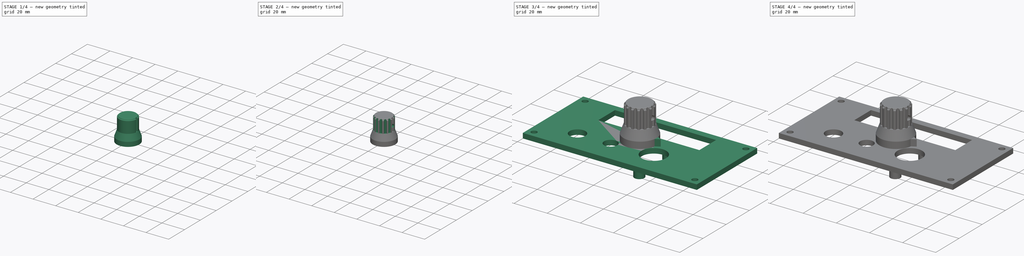
[diagram: build sequence overview — one tinted view per stage of 4, left to right]
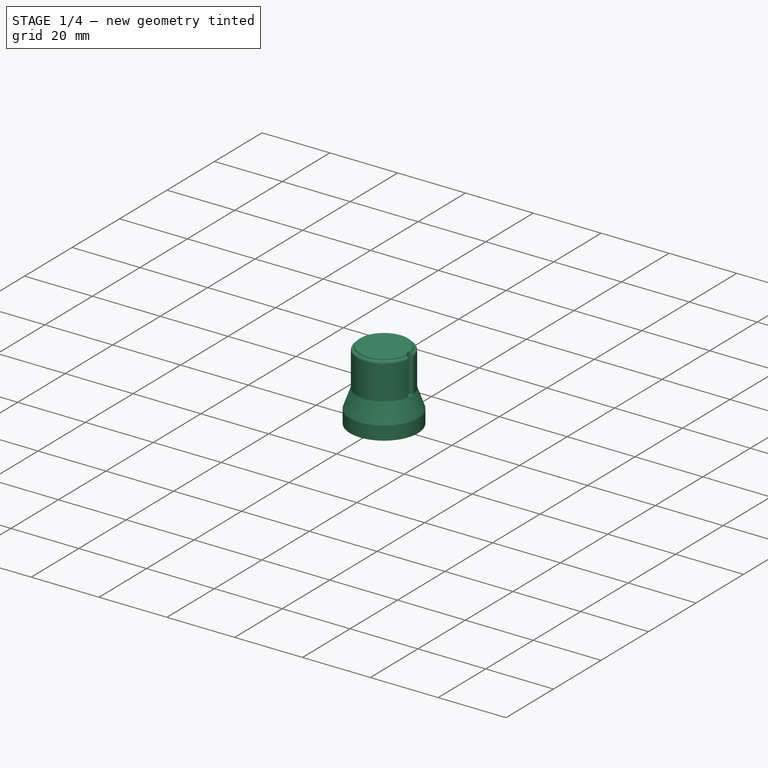
[diagram: stage 1 of 4 — iso view after this stage's code; geometry added in this stage tinted green]
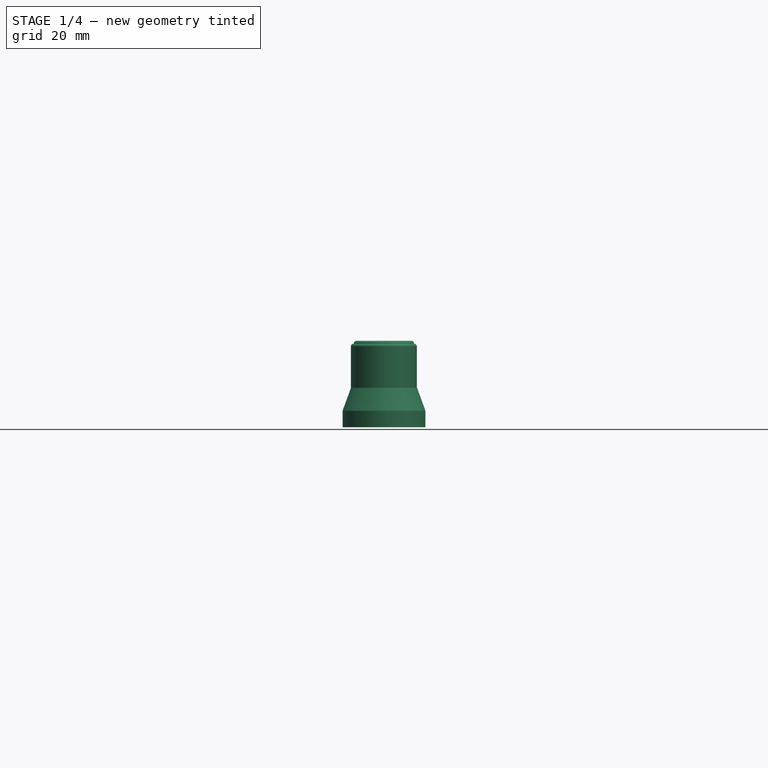
[diagram: stage 1 of 4 — front view after this stage's code; geometry added in this stage tinted green]
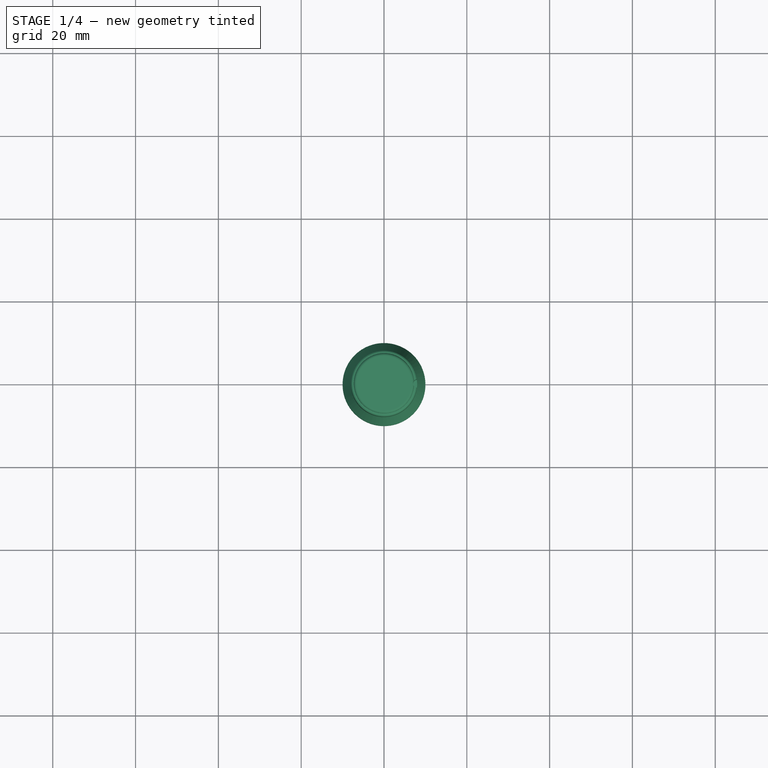
[diagram: stage 1 of 4 — top view after this stage's code; geometry added in this stage tinted green]
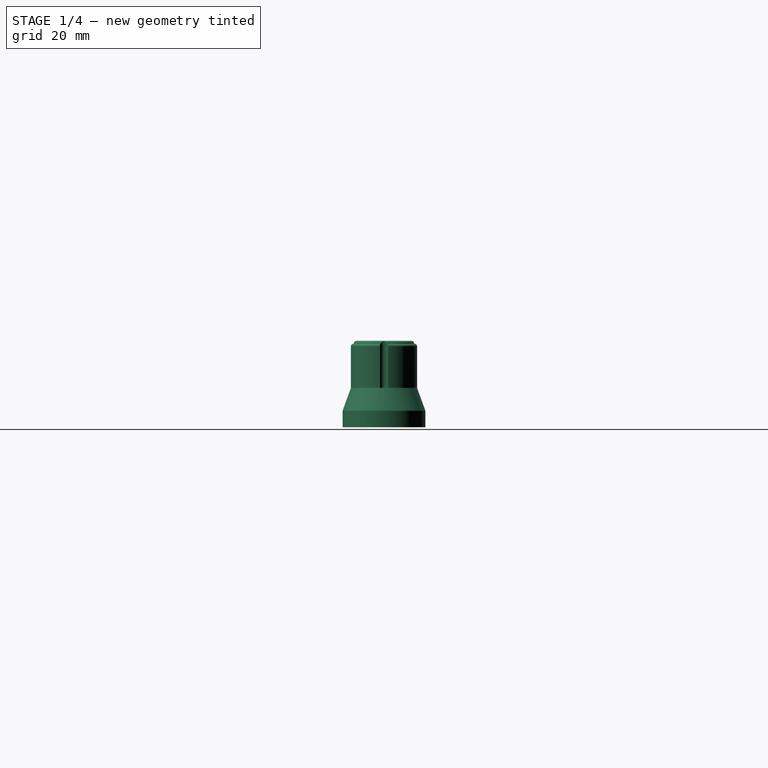
[diagram: stage 1 of 4 — right view after this stage's code; geometry added in this stage tinted green]
FCSTD DOCUMENT  (FreeCAD 0.16R6712 (Git))
Label: transponder
License: All rights reserved
LicenseURL: http://en.wikipedia.org/wiki/All_rights_reserved
objects: Sketcher::SketchObject×8, PartDesign::Pad×4, PartDesign::Pocket×3, PartDesign::Revolution×1, PartDesign::PolarPattern×1, Part::Cut×1, App::DocumentObjectGroup×1
note: 26 computed .brp shape members not serialized (recipe doc carries the construction recipe); baked Part::Feature solids carry a one-line shape summary decoded from their .brp

FEATURE [Sketcher::SketchObject] Sketch091
  Placement = pos=(0,0,0) rot=(1,0,0;1.5708rad)
  sketch-geometry (15):
    g0: LineSegment StartX=8.5 StartY=0 StartZ=0 EndX=10 EndY=0 EndZ=0
    g1: LineSegment StartX=10 StartY=0 StartZ=0 EndX=10 EndY=4 EndZ=0
    g2: LineSegment StartX=10 StartY=4 StartZ=0 EndX=8 EndY=9.5 EndZ=0
    g3: LineSegment StartX=8 StartY=9.5 StartZ=0 EndX=8 EndY=19.5 EndZ=0
    g4: LineSegment [constr] StartX=8 StartY=19.5 StartZ=0 EndX=-6.9e-11 EndY=19.5 EndZ=0
    g5: LineSegment StartX=-6.9e-11 StartY=19.5 StartZ=0 EndX=-6.9e-11 EndY=17 EndZ=0
    g6: LineSegment StartX=-6.9e-11 StartY=17 StartZ=0 EndX=3.1 EndY=17 EndZ=0
    g7: LineSegment StartX=3.1 StartY=17 StartZ=0 EndX=3.1 EndY=6 EndZ=0
    g8: LineSegment StartX=3.1 StartY=6 StartZ=0 EndX=8.5 EndY=6 EndZ=0
    g9: LineSegment StartX=8.5 StartY=6 StartZ=0 EndX=8.5 EndY=0 EndZ=0
    g10: ArcOfCircle CenterX=7.3 CenterY=19.5 CenterZ=0 NormalX=0 NormalY=0 NormalZ=1 Radius=0.7 StartAngle=0 EndAngle=1.57079
    g11: LineSegment [constr] StartX=7.3 StartY=20.2 StartZ=0 EndX=0 EndY=20.2 EndZ=0
    g12: ArcOfCircle CenterX=6.6 CenterY=20.2 CenterZ=0 NormalX=0 NormalY=0 NormalZ=1 Radius=0.7 StartAngle=0 EndAngle=1.57079
    g13: LineSegment StartX=6.6 StartY=20.9 StartZ=0 EndX=0 EndY=20.9 EndZ=0
    g14: LineSegment StartX=-6.9e-11 StartY=20.9 StartZ=0 EndX=-6.9e-11 EndY=19.5 EndZ=0
  constraints (47):
    c: Horizontal(g0)
    c: Coincident(g0,g1)
    c: Vertical(g1)
    c: Coincident(g1,g2)
    c: Coincident(g2,g3)
    c: Vertical(g3)
    c: Coincident(g3,g4)
    c: Horizontal(g4)
    c: Coincident(g4,g5)
    c: Vertical(g5)
    c: Coincident(g5,g6)
    c: Horizontal(g6)
    c: Coincident(g6,g7)
    c: Vertical(g7)
    c: Coincident(g7,g8)
    c: Horizontal(g8)
    c: Coincident(g8,g9)
    c: Coincident(g9,g0)
    c: Vertical(g9)
    c: DistanceX(g4,g4) = 8
    c: DistanceX(g2,g2) = 2
    c: DistanceY(g1,g1) = 4
    c: DistanceY(g9,g9) = 6
    c: DistanceX(g6,g6) = 3.1
    c: PointOnObject(g4,g-2)
    c: DistanceX(g-1,g0) = 8.5
    c: DistanceY(g0,g3) = 19.5
    c: PointOnObject(g0,g-1)
    c: DistanceY(g-1,g5) = 17
    c: DistanceY(g3,g3) = 10
    c: Coincident(g10,g3)
    c: PointOnObject(g10,g4)
    c: Radius(g10) = 0.7
    c: Horizontal(g11)
    c: Coincident(g11,g10)
    c: PointOnObject(g11,g-2)
    c: DistanceY(g3,g10) = 0.7
    c: PointOnObject(g12,g11)
    c: Coincident(g12,g10)
    c: Radius(g12) = 0.7
    c: DistanceY(g10,g12) = 0.7
    c: Horizontal(g13)
    c: Coincident(g13,g12)
    c: PointOnObject(g13,g-2)
    c: Vertical(g14)
    c: Coincident(g14,g4)
    c: Coincident(g14,g13)
FEATURE [PartDesign::Revolution] Revolution
  Angle = 360
  Axis = (0,0,1)
  Base = (0,0,0)
  Placement = pos=(0,0,0) rot=(1,0,0;1.5708rad)
  ReferenceAxis = -> Sketch091 [V_Axis]
  Reversed = true
  Sketch = -> Sketch091
FEATURE [PartDesign::Pocket] Pocket009
  Length = 11.4
  Placement = pos=(0,0,0) rot=(1,0,0;1.5708rad)
  Sketch = -> Sketch092
  Type = 0
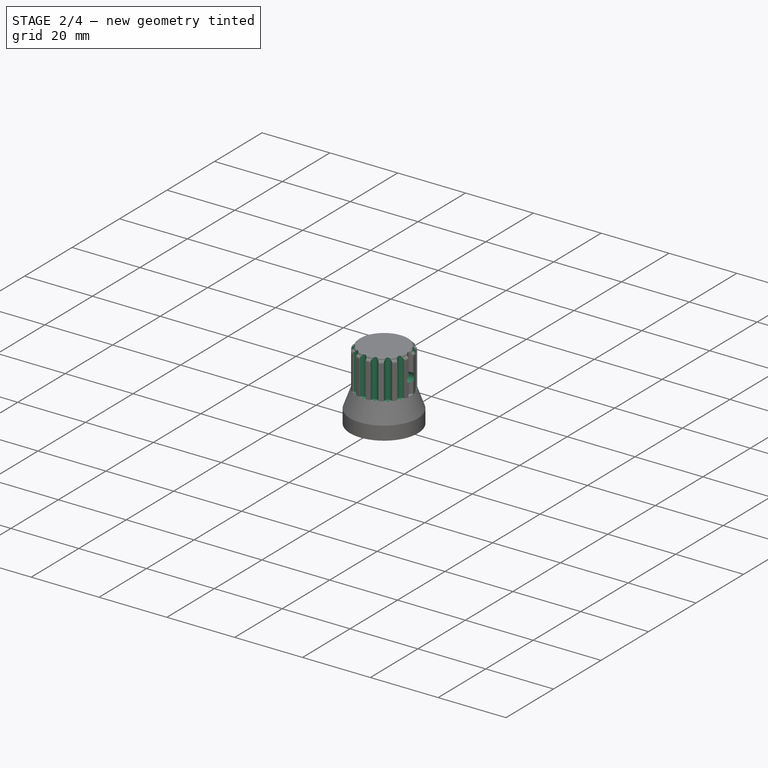
[diagram: stage 2 of 4 — iso view after this stage's code; geometry added in this stage tinted green]
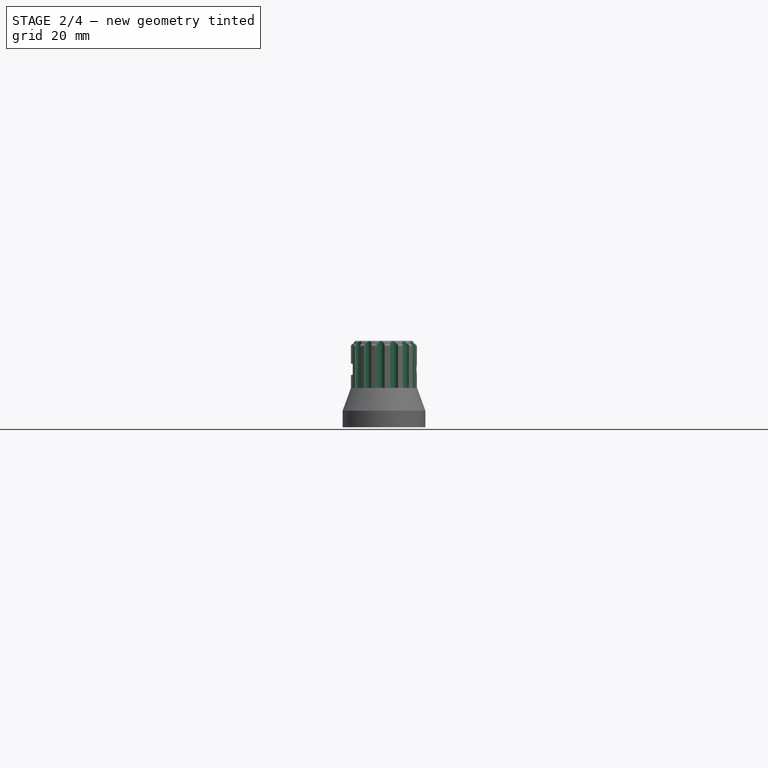
[diagram: stage 2 of 4 — front view after this stage's code; geometry added in this stage tinted green]
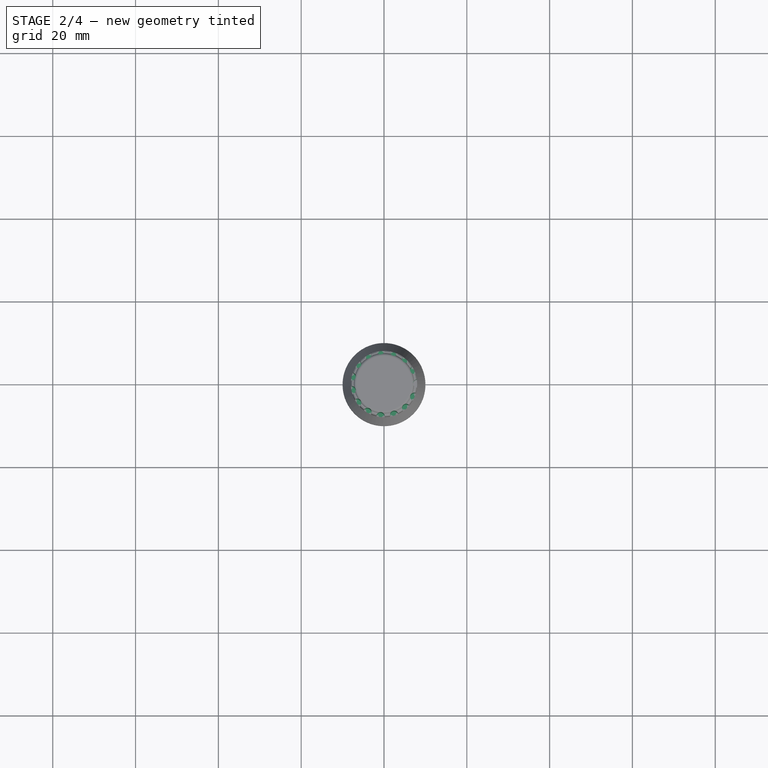
[diagram: stage 2 of 4 — top view after this stage's code; geometry added in this stage tinted green]
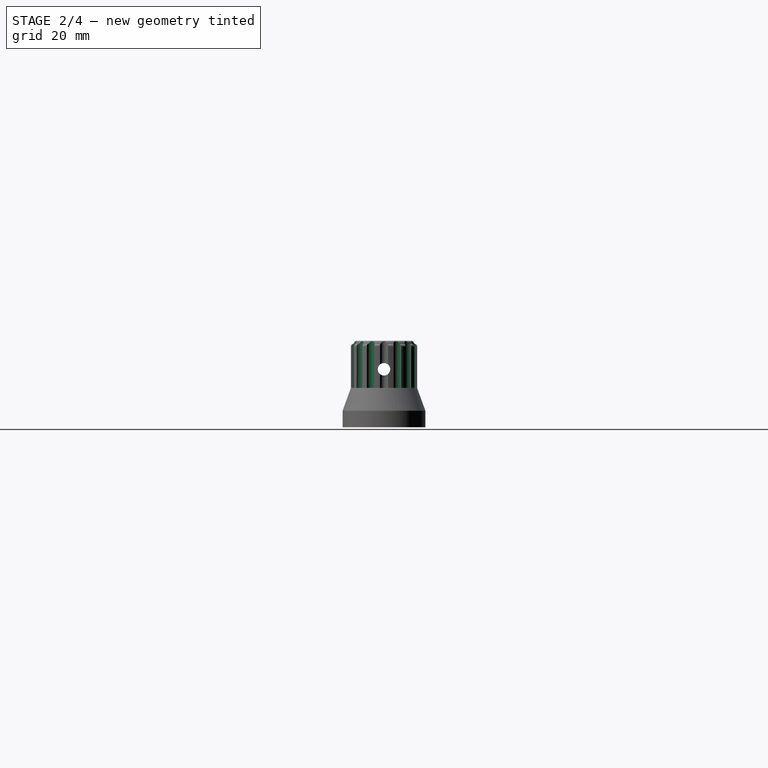
[diagram: stage 2 of 4 — right view after this stage's code; geometry added in this stage tinted green]
FEATURE [Sketcher::SketchObject] Sketch092
  ExternalGeometry = -> [Revolution]
  Placement = pos=(0,0,20.9) rot=(0,0,1;3.14159rad)
  Support = -> Revolution [Face5]
  sketch-geometry (1):
    g0: Circle CenterX=-8 CenterY=0 CenterZ=0 NormalX=0 NormalY=0 NormalZ=1 Radius=1
  constraints (3):
    c: PointOnObject(g0,g-3)
    c: PointOnObject(g0,g-1)
    c: Radius(g0) = 1
FEATURE [Sketcher::SketchObject] Sketch093
  Placement = pos=(0,0,0) rot=(0.57735,0.57735,0.57735;2.0944rad)
  sketch-geometry (1):
    g0: Circle CenterX=0 CenterY=14 CenterZ=0 NormalX=0 NormalY=0 NormalZ=1 Radius=1.5
  constraints (3):
    c: DistanceY(g-1,g0) = 14
    c: PointOnObject(g0,g-2)
    c: Radius(g0) = 1.5
FEATURE [PartDesign::Pad] Pad055  label="Prisionero"
  Length = 30
  Length2 = 100
  Midplane = true
  Placement = pos=(0,0,0) rot=(0.57735,0.57735,0.57735;2.0944rad)
  Sketch = -> Sketch093
  Type = 0
FEATURE [PartDesign::PolarPattern] PolarPattern
  Angle = 360
  Axis = -> Sketch092 [N_Axis]
  Occurrences = 15
  Originals = -> [Pocket009]
  Placement = pos=(0,0,0) rot=(1,0,0;1.5708rad)
FEATURE [Part::Cut] Cut
  Base = -> PolarPattern
  Tool = -> Pad055
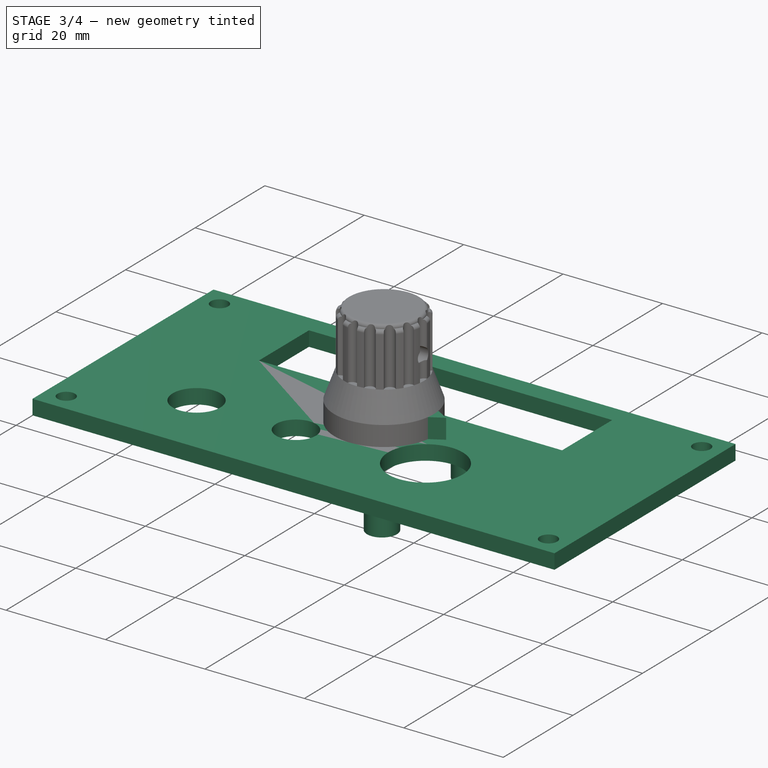
[diagram: stage 3 of 4 — iso view after this stage's code; geometry added in this stage tinted green]
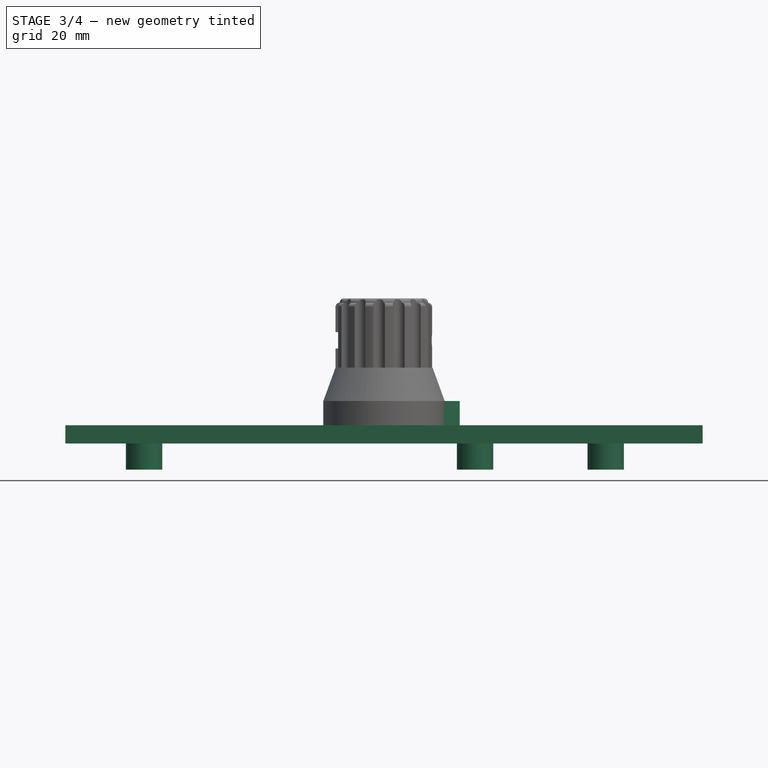
[diagram: stage 3 of 4 — front view after this stage's code; geometry added in this stage tinted green]
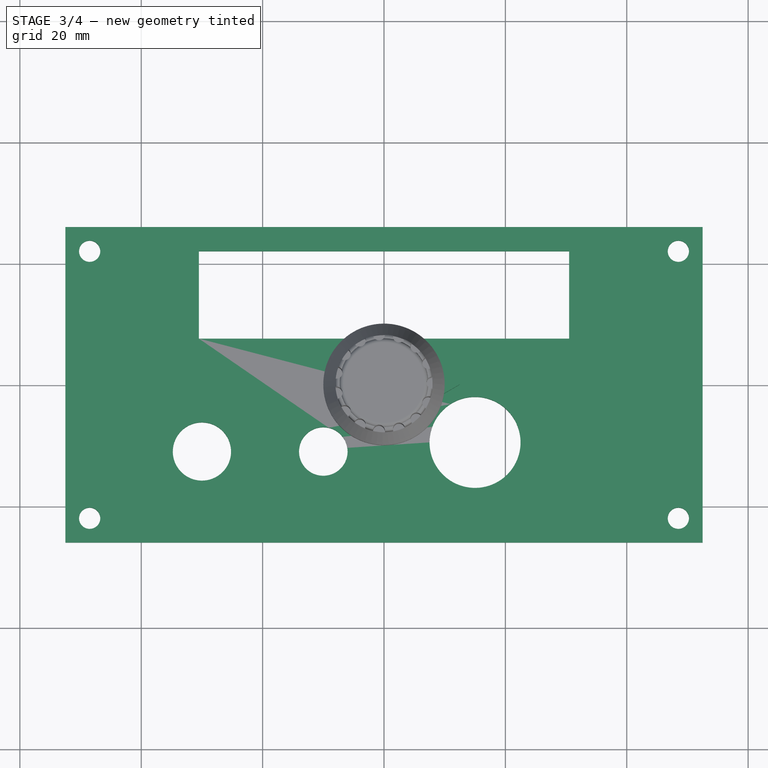
[diagram: stage 3 of 4 — top view after this stage's code; geometry added in this stage tinted green]
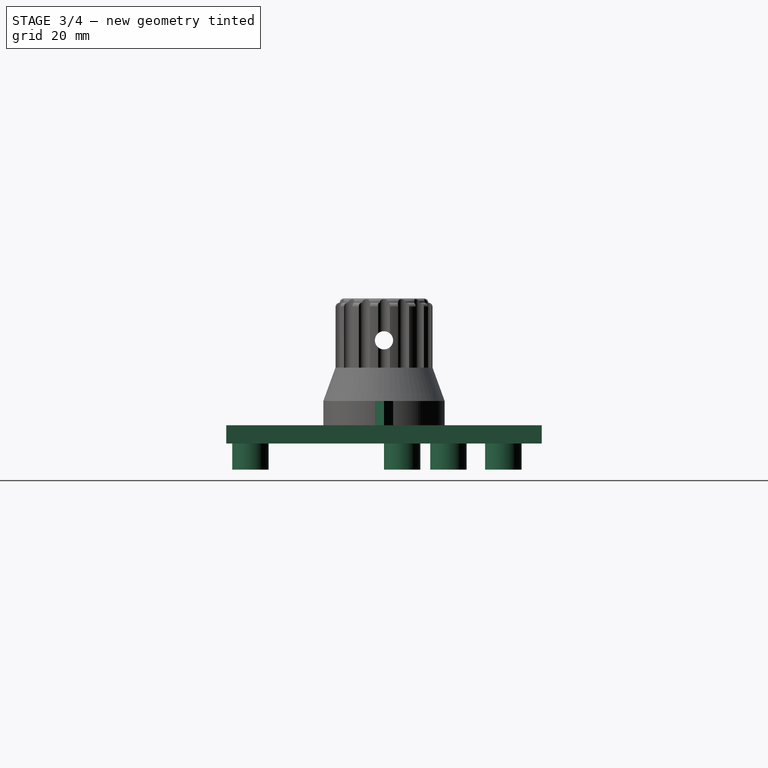
[diagram: stage 3 of 4 — right view after this stage's code; geometry added in this stage tinted green]
FEATURE [Sketcher::SketchObject] Sketch010
  sketch-geometry (19):
    g0: LineSegment StartX=-52.5 StartY=26 StartZ=0 EndX=52.5 EndY=26 EndZ=0
    g1: LineSegment StartX=52.5 StartY=26 StartZ=0 EndX=52.5 EndY=-26 EndZ=0
    g2: LineSegment StartX=52.5 StartY=-26 StartZ=0 EndX=-52.5 EndY=-26 EndZ=0
    g3: LineSegment StartX=-52.5 StartY=-26 StartZ=0 EndX=-52.5 EndY=26 EndZ=0
    g4: Circle CenterX=15 CenterY=-9.5 CenterZ=0 NormalX=0 NormalY=0 NormalZ=1 Radius=7.5
    g5: LineSegment StartX=-30.5 StartY=22 StartZ=0 EndX=30.5 EndY=22 EndZ=0
    g6: LineSegment StartX=30.5 StartY=22 StartZ=0 EndX=30.5 EndY=7.6 EndZ=0
    g7: LineSegment StartX=30.5 StartY=7.6 StartZ=0 EndX=-30.5 EndY=7.6 EndZ=0
    g8: LineSegment StartX=-30.5 StartY=7.6 StartZ=0 EndX=-30.5 EndY=22 EndZ=0
    g9: LineSegment [constr] StartX=-48.5 StartY=22 StartZ=0 EndX=48.5 EndY=22 EndZ=0
    g10: LineSegment [constr] StartX=48.5 StartY=22 StartZ=0 EndX=48.5 EndY=-22 EndZ=0
    g11: LineSegment [constr] StartX=48.5 StartY=-22 StartZ=0 EndX=-48.5 EndY=-22 EndZ=0
    g12: LineSegment [constr] StartX=-48.5 StartY=-22 StartZ=0 EndX=-48.5 EndY=22 EndZ=0
    g13: Circle CenterX=-48.5 CenterY=22 CenterZ=0 NormalX=0 NormalY=0 NormalZ=1 Radius=1.75
    g14: Circle CenterX=48.5 CenterY=22 CenterZ=0 NormalX=0 NormalY=0 NormalZ=1 Radius=1.75
    g15: Circle CenterX=-48.5 CenterY=-22 CenterZ=0 NormalX=0 NormalY=0 NormalZ=1 Radius=1.75
    g16: Circle CenterX=48.5 CenterY=-22 CenterZ=0 NormalX=0 NormalY=0 NormalZ=1 Radius=1.75
    g17: Circle CenterX=-30 CenterY=-11 CenterZ=0 NormalX=0 NormalY=0 NormalZ=1 Radius=4.8
    g18: Circle CenterX=-10 CenterY=-11 CenterZ=0 NormalX=0 NormalY=0 NormalZ=1 Radius=4
  constraints (53):
    c: Coincident(g0,g1)
    c: Coincident(g1,g2)
    c: Coincident(g2,g3)
    c: Coincident(g3,g0)
    c: Horizontal(g0)
    c: Horizontal(g2)
    c: Vertical(g1)
    c: Vertical(g3)
    c: DistanceX(g0,g0) = 105
    c: DistanceY(g1,g1) = 52
    c: Symmetric(g2,g1,g-2)
    c: Symmetric(g0,g1,g-1)
    c: Radius(g4) = 7.5
    c: DistanceY(g1,g4) = 16.5
    c: Coincident(g5,g6)
    c: Coincident(g6,g7)
    c: Coincident(g7,g8)
    c: Coincident(g8,g5)
    c: Horizontal(g5)
    c: Horizontal(g7)
    c: Vertical(g6)
    c: Vertical(g8)
    c: DistanceX(g5,g5) = 61
    c: DistanceY(g6,g6) = 14.4
    c: Coincident(g9,g10)
    c: Coincident(g10,g11)
    c: Coincident(g11,g12)
    c: Coincident(g12,g9)
    c: Horizontal(g9)
    c: Horizontal(g11)
    c: Vertical(g10)
    c: Vertical(g12)
    c: Distance(g9) = 97
    c: Distance(g10) = 44
    c: Symmetric(g9,g11,g-1)
    c: Symmetric(g9,g9,g-2)
    c: Coincident(g13,g9)
    c: Radius(g13) = 1.75
    c: Coincident(g14,g9)
    c: Coincident(g16,g10)
    c: Coincident(g15,g11)
    c: Equal(g13,g15)
    c: Equal(g15,g16)
    c: Equal(g16,g14)
    c: DistanceY(g5,g0) = 4
    c: Symmetric(g6,g7,g-2)
    c: DistanceX(g-1,g4) = 15
    c: Radius(g17) = 4.8
    c: DistanceY(g2,g17) = 15
    c: DistanceX(g17,g-1) = 30
    c: Radius(g18) = 4
    c: DistanceY(g2,g18) = 15
    c: DistanceX(g17,g18) = 20
FEATURE [PartDesign::Pad] Pad007
  Length = 3
  Length2 = 100
  Reversed = true
  Sketch = -> Sketch010
  Type = 0
FEATURE [Sketcher::SketchObject] Sketch085
  ExternalGeometry = -> [Pad007]
  Placement = pos=(0,0,-3) rot=(1,0,0;3.14159rad)
  Support = -> Pad007 [Face18]
  sketch-geometry (11):
    g0: LineSegment [constr] StartX=-39.54 StartY=-10.62 StartZ=0 EndX=36.53 EndY=-10.62 EndZ=0
    g1: LineSegment [constr] StartX=36.53 StartY=-10.62 StartZ=0 EndX=36.53 EndY=-19.67 EndZ=0
    g2: LineSegment [constr] StartX=36.53 StartY=-19.67 StartZ=0 EndX=-39.54 EndY=-19.67 EndZ=0
    g3: LineSegment [constr] StartX=-39.54 StartY=-19.67 StartZ=0 EndX=-39.54 EndY=-10.62 EndZ=0
    g4: Circle CenterX=-39.54 CenterY=-10.62 CenterZ=0 NormalX=0 NormalY=0 NormalZ=1 Radius=3
    g5: Circle CenterX=-39.54 CenterY=-19.67 CenterZ=0 NormalX=0 NormalY=0 NormalZ=1 Radius=3
    g6: Circle CenterX=36.53 CenterY=-19.67 CenterZ=0 NormalX=0 NormalY=0 NormalZ=1 Radius=3
    g7: Circle CenterX=36.53 CenterY=-10.62 CenterZ=0 NormalX=0 NormalY=0 NormalZ=1 Radius=3
    g8: LineSegment [constr] StartX=15 StartY=22 StartZ=0 EndX=15 EndY=-3 EndZ=0
    g9: Circle CenterX=15 CenterY=22 CenterZ=0 NormalX=0 NormalY=0 NormalZ=1 Radius=3
    g10: Circle CenterX=15 CenterY=-3 CenterZ=0 NormalX=0 NormalY=0 NormalZ=1 Radius=3
  constraints (28):
    c: Coincident(g0,g1)
    c: Coincident(g1,g2)
    c: Coincident(g2,g3)
    c: Coincident(g3,g0)
    c: Horizontal(g0)
    c: Horizontal(g2)
    c: Vertical(g1)
    c: Vertical(g3)
    c: DistanceX(g-3,g0) = 6.03
    c: DistanceY(g1,g0) = 9.05
    c: DistanceY(g0,g-3) = 3.02
    c: DistanceX(g0,g-3) = 9.04
    c: Coincident(g7,g0)
    c: Coincident(g6,g1)
    c: Coincident(g5,g2)
    c: Coincident(g4,g0)
    c: Equal(g4,g5)
    c: Equal(g5,g6)
    c: Equal(g6,g7)
    c: Radius(g4) = 3
    c: Vertical(g8)
    c: PointOnObject(g-4,g8)
    c: DistanceY(g8,g8) = 25
    c: Symmetric(g8,g8,g-4)
    c: Equal(g10,g9)
    c: Equal(g9,g7)
    c: Coincident(g10,g8)
    c: Coincident(g9,g8)
FEATURE [PartDesign::Pad] Pad054
  Length = 4.3
  Length2 = 100
  Sketch = -> Sketch085
  Type = 0
FEATURE [Sketcher::SketchObject] Sketch094
  ExternalGeometry = -> [Cut]
  Placement = pos=(0,0,0) rot=(1,0,0;3.14159rad)
  Support = -> Cut [Face1]
  sketch-geometry (3):
    g0: LineSegment StartX=9.88686 StartY=1.5 StartZ=0 EndX=9.88686 EndY=-1.5 EndZ=0
    g1: LineSegment StartX=9.88686 StartY=-1.5 StartZ=0 EndX=12.4849 EndY=0 EndZ=0
    g2: LineSegment StartX=12.4849 StartY=0 StartZ=0 EndX=9.88686 EndY=1.5 EndZ=0
  constraints (9):
    c: Vertical(g0)
    c: Coincident(g0,g1)
    c: Coincident(g1,g2)
    c: Coincident(g2,g0)
    c: PointOnObject(g1,g-1)
    c: Equal(g0,g2)
    c: Equal(g2,g1)
    c: DistanceY(g0,g0) = 3
    c: PointOnObject(g0,g-3)
FEATURE [PartDesign::Pad] Pad056  label="knob selector"
  Length = 4
  Length2 = 100
  Reversed = true
  Sketch = -> Sketch094
  Type = 0
FEATURE [App::DocumentObjectGroup] Grupo004  label="Transponder"
  Group = -> [Pad007,Pad054,Pocket007,Pocket008,Revolution,Cut,Pad056,Pocket009]
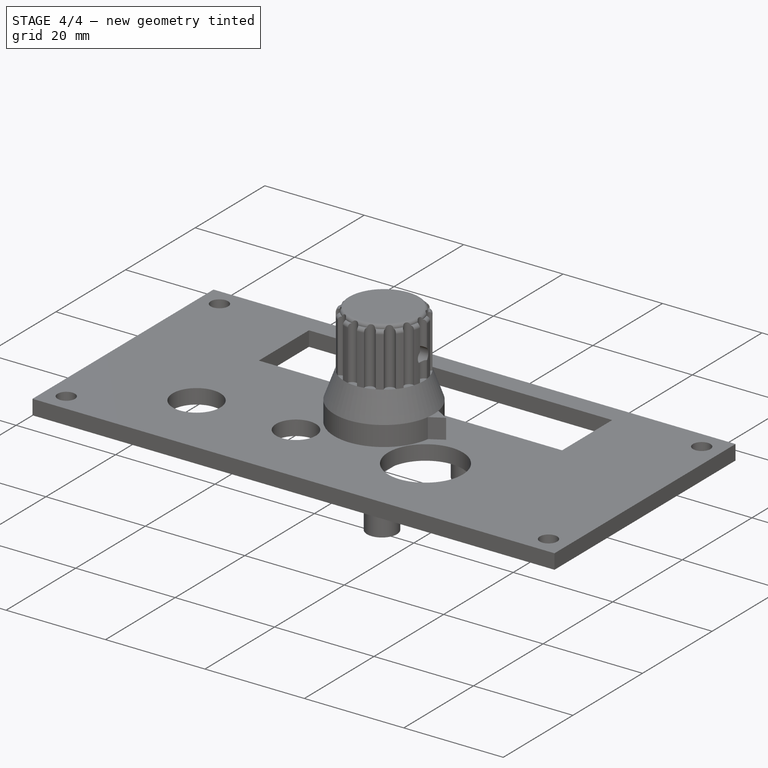
[diagram: stage 4 of 4 — iso view after this stage's code; geometry added in this stage tinted green]
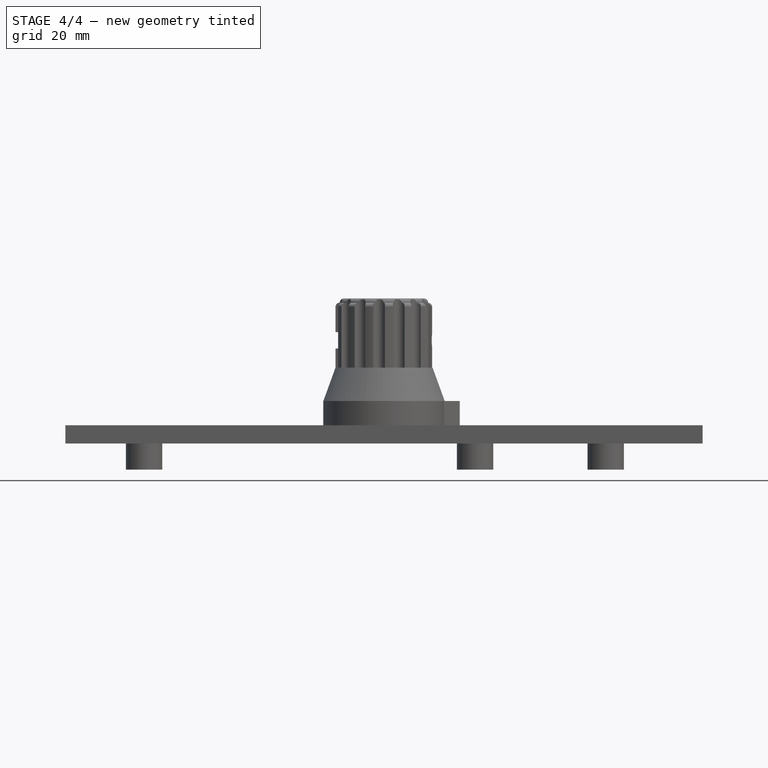
[diagram: stage 4 of 4 — front view after this stage's code; geometry added in this stage tinted green]
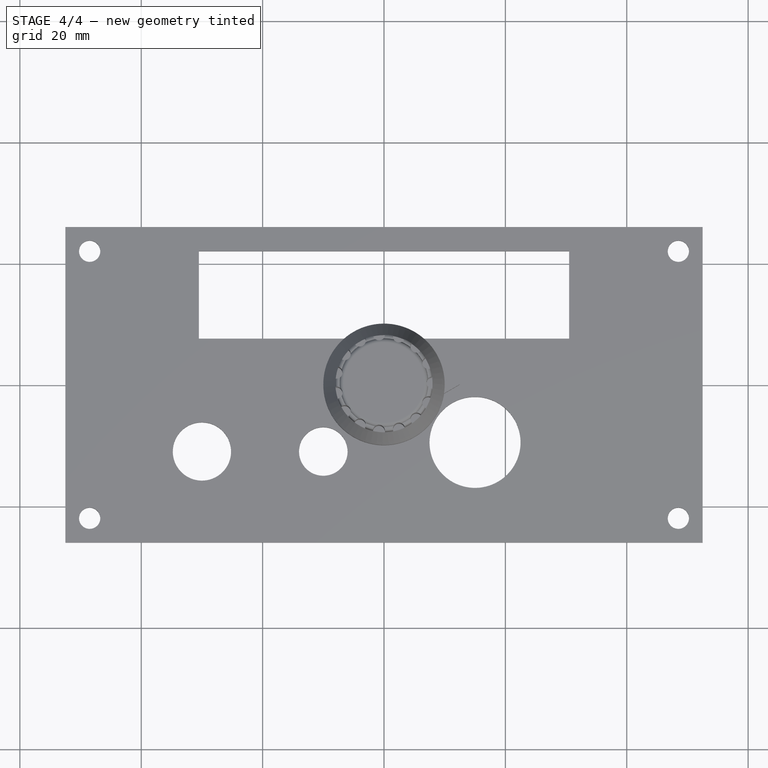
[diagram: stage 4 of 4 — top view after this stage's code; geometry added in this stage tinted green]
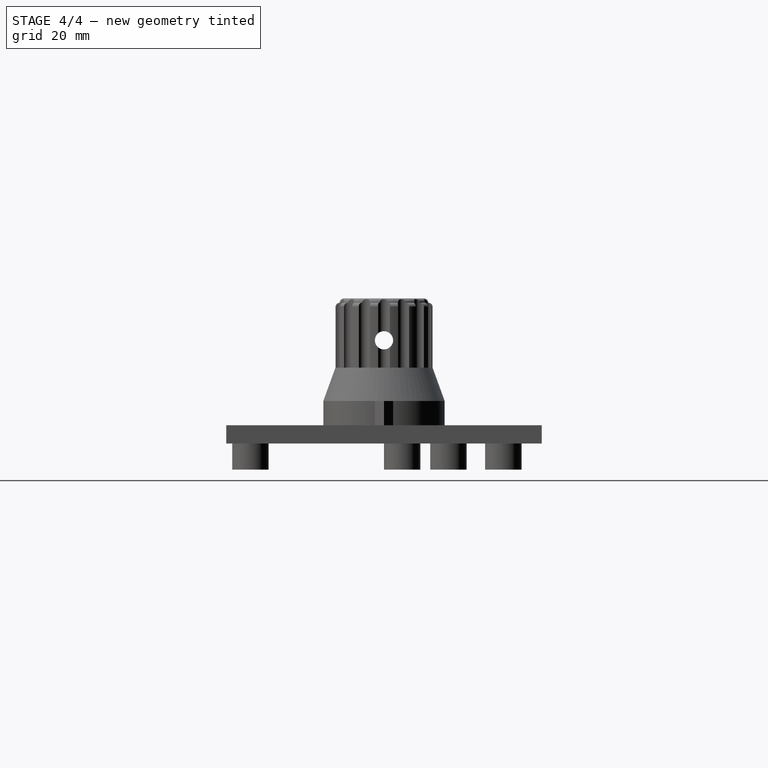
[diagram: stage 4 of 4 — right view after this stage's code; geometry added in this stage tinted green]
FEATURE [Sketcher::SketchObject] Sketch086
  ExternalGeometry = -> [Pad054]
  Placement = pos=(0,0,-7.3) rot=(1,0,0;3.14159rad)
  Support = -> Pad054 [Face30]
  sketch-geometry (6):
    g0: Circle CenterX=15 CenterY=22 CenterZ=0 NormalX=0 NormalY=0 NormalZ=1 Radius=1.4
    g1: Circle CenterX=15 CenterY=-3 CenterZ=0 NormalX=0 NormalY=0 NormalZ=1 Radius=1.4
    g2: Circle CenterX=36.53 CenterY=-10.62 CenterZ=0 NormalX=0 NormalY=0 NormalZ=1 Radius=1.4
    g3: Circle CenterX=36.53 CenterY=-19.67 CenterZ=0 NormalX=0 NormalY=0 NormalZ=1 Radius=1.4
    g4: Circle CenterX=-39.54 CenterY=-10.62 CenterZ=0 NormalX=0 NormalY=0 NormalZ=1 Radius=1.4
    g5: Circle CenterX=-39.54 CenterY=-19.67 CenterZ=0 NormalX=0 NormalY=0 NormalZ=1 Radius=1.4
FEATURE [PartDesign::Pocket] Pocket007
  Length = 5
  Sketch = -> Sketch086
  Type = 0
FEATURE [Sketcher::SketchObject] Sketch090
  ExternalGeometry = -> [Pocket007]
  Placement = pos=(0,0,-3) rot=(1,0,0;3.14159rad)
  Support = -> Pocket007 [Face5]
  sketch-geometry (1):
    g0: Circle CenterX=-39 CenterY=11 CenterZ=0 NormalX=0 NormalY=0 NormalZ=1 Radius=1.7
  constraints (3):
    c: DistanceX(g0,g-3) = 9
    c: Radius(g0) = 1.7
    c: DistanceY(g-3,g0) = 0
FEATURE [PartDesign::Pocket] Pocket008
  Length = 2
  Sketch = -> Sketch090
  Type = 0
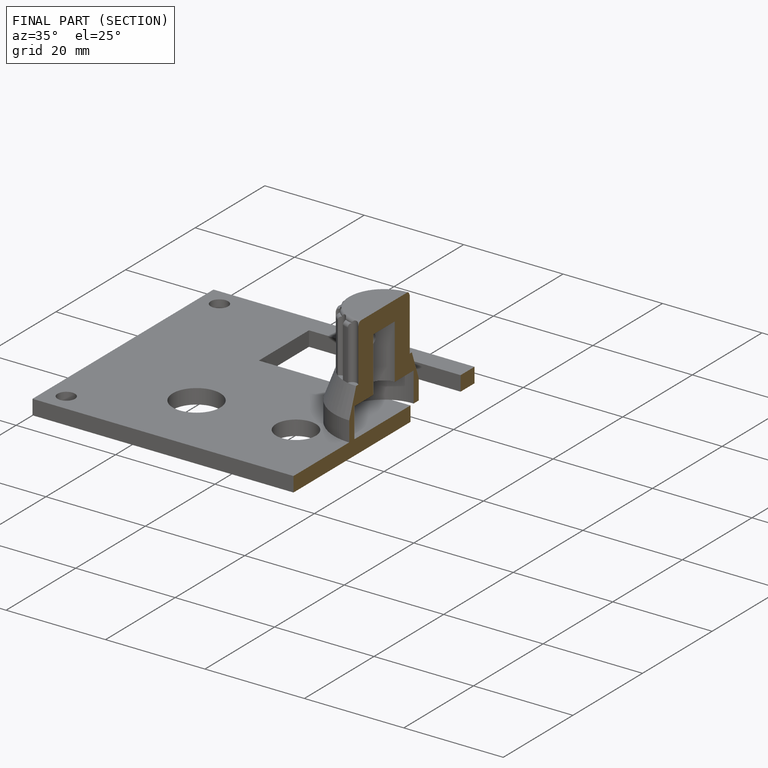
[diagram: finished part — half-section view (interior)]
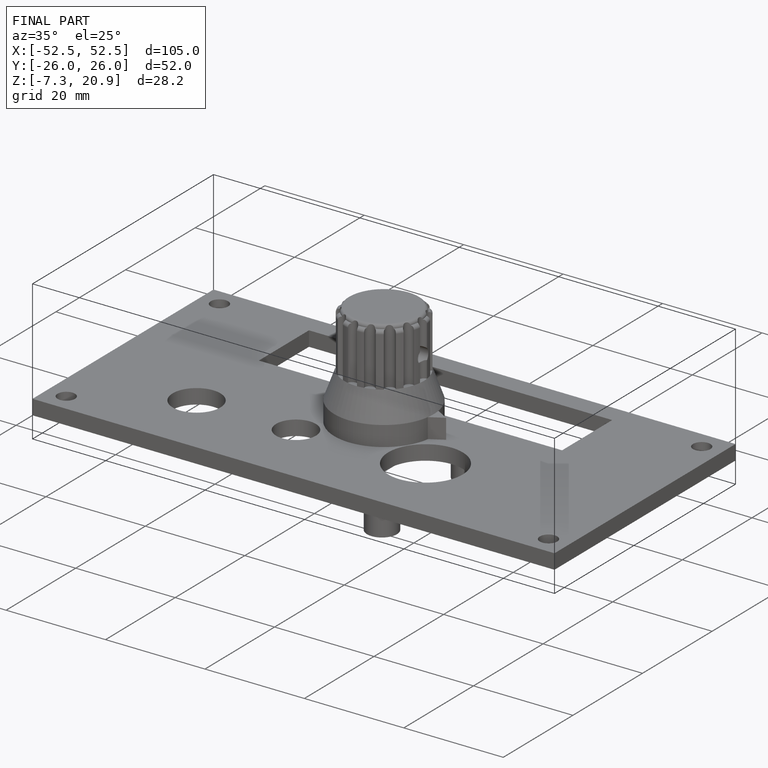
[diagram: finished part — iso view with bounding-box wireframe]
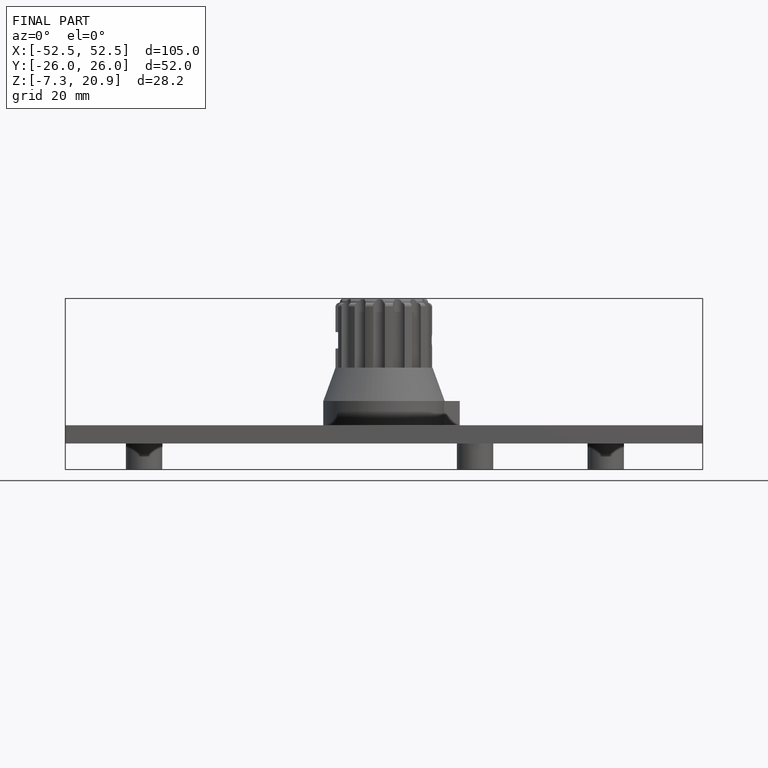
[diagram: finished part — front view with bounding-box wireframe]
